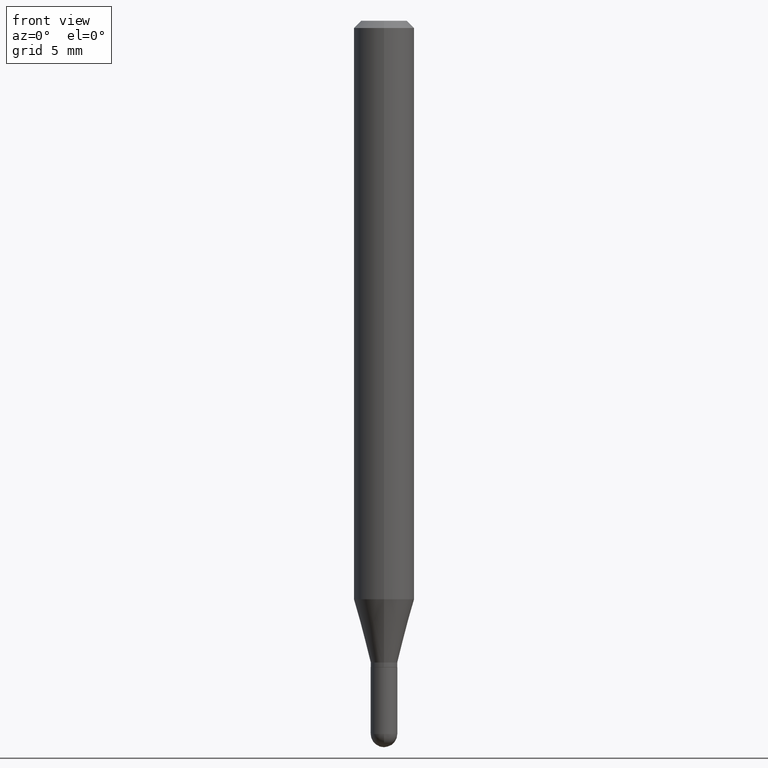
[diagram: clean part render]
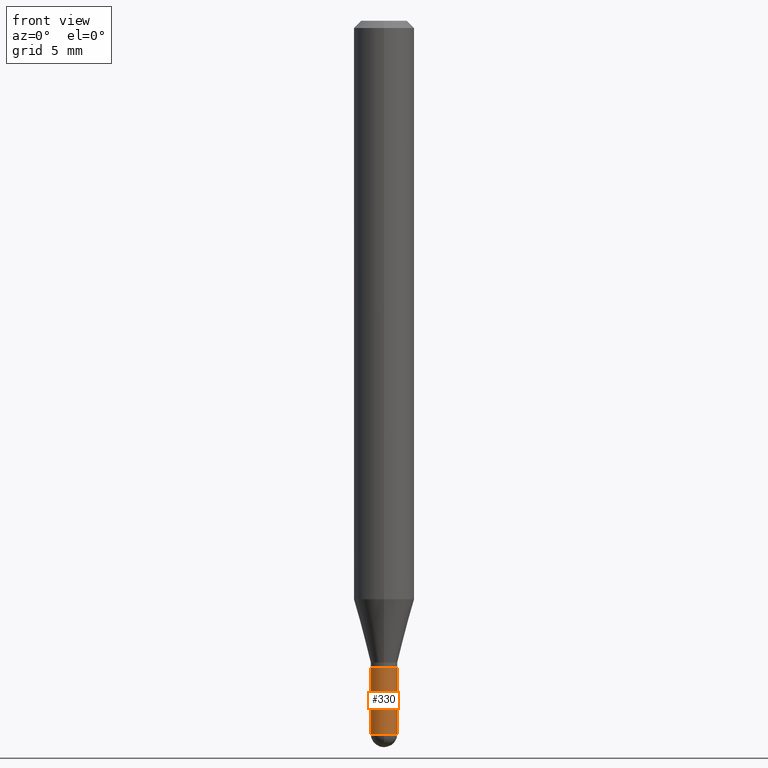
[diagram: same view with one face highlighted and labeled with its STEP entity id]
A machine part, front view. The second image highlights one B-rep face of the part: STEP entity #330.
In plain terms, the highlighted cylindrical surface (edge-blend (fillet) strip) has radius 0.6985 mm, axis along (-0, 0, 1).
Its self-contained STEP definition (entity closure, byte-faithful):
#4 = CIRCLE ( 'NONE', #433, 0.02750000000000000708 ) ;
#16 = VERTEX_POINT ( 'NONE', #313 ) ;
#37 = DIRECTION ( 'NONE',  ( 1.000000000000000000, -6.982962677686279332E-15, 0.000000000000000000 ) ) ;
#48 = AXIS2_PLACEMENT_3D ( 'NONE', #289, #436, #51 ) ;
#50 = ORIENTED_EDGE ( 'NONE', *, *, #254, .T. ) ;
#51 = DIRECTION ( 'NONE',  ( 1.000000000000000000, -6.982962677686265922E-15, 4.876176775795935232E-29 ) ) ;
#66 = CARTESIAN_POINT ( 'NONE',  ( -0.02750000000000000708, 1.953992523340276014E-16, -1.352707149820099356E-30 ) ) ;
#70 = ORIENTED_EDGE ( 'NONE', *, *, #151, .T. ) ;
#82 = CARTESIAN_POINT ( 'NONE',  ( 3.264700856257157760E-29, -4.661127587355599122E-15, -1.335000000000000187 ) ) ;
#98 = CARTESIAN_POINT ( 'NONE',  ( 0.02750000000000000014, -4.853159060991972403E-15, -1.335000000000000187 ) ) ;
#114 = EDGE_LOOP ( 'NONE', ( #446, #132, #50, #70, #373 ) ) ;
#132 = ORIENTED_EDGE ( 'NONE', *, *, #470, .T. ) ;
#137 = LINE ( 'NONE', #454, #507 ) ;
#148 = AXIS2_PLACEMENT_3D ( 'NONE', #423, #424, #274 ) ;
#151 = EDGE_CURVE ( 'NONE', #16, #301, #137, .T. ) ;
#167 = VERTEX_POINT ( 'NONE', #251 ) ;
#179 = DIRECTION ( 'NONE',  ( -2.445468806185136877E-29, 3.491481338843145188E-15, 1.000000000000000000 ) ) ;
#181 = VERTEX_POINT ( 'NONE', #314 ) ;
#206 = EDGE_CURVE ( 'NONE', #181, #301, #315, .T. ) ;
#207 = DIRECTION ( 'NONE',  ( -2.445468806185136597E-29, 3.491481338843145583E-15, 1.000000000000000000 ) ) ;
#226 = VERTEX_POINT ( 'NONE', #473 ) ;
#227 = DIRECTION ( 'NONE',  ( -2.445468806185136877E-29, 3.491481338843145188E-15, 1.000000000000000000 ) ) ;
#251 = CARTESIAN_POINT ( 'NONE',  ( -0.02750000000000000708, -4.705767677067038393E-15, -1.472500000000000142 ) ) ;
#254 = EDGE_CURVE ( 'NONE', #226, #16, #4, .T. ) ;
#265 = LINE ( 'NONE', #66, #292 ) ;
#274 = DIRECTION ( 'NONE',  ( 1.000000000000000000, -6.982962677686277755E-15, 0.000000000000000000 ) ) ;
#275 = AXIS2_PLACEMENT_3D ( 'NONE', #82, #390, #37 ) ;
#287 = CYLINDRICAL_SURFACE ( 'NONE', #48, 0.02750000000000000708 ) ;
#289 = CARTESIAN_POINT ( 'NONE',  ( 0.000000000000000000, 0.000000000000000000, 0.000000000000000000 ) ) ;
#292 = VECTOR ( 'NONE', #227, 39.37007874015748143 ) ;
#301 = VERTEX_POINT ( 'NONE', #98 ) ;
#313 = CARTESIAN_POINT ( 'NONE',  ( 0.02750000000000000708, -5.093198403037438216E-15, -1.472500000000000142 ) ) ;
#314 = CARTESIAN_POINT ( 'NONE',  ( -0.02750000000000000014, -4.705767677067038393E-15, -1.335000000000000187 ) ) ;
#315 = CIRCLE ( 'NONE', #275, 0.02750000000000000014 ) ;
#319 = DIRECTION ( 'NONE',  ( 1.000000000000000000, -6.982962677686277755E-15, 0.000000000000000000 ) ) ;
#330 = ADVANCED_FACE ( 'NONE', ( #483 ), #287, .T. ) ;
#373 = ORIENTED_EDGE ( 'NONE', *, *, #206, .F. ) ;
#390 = DIRECTION ( 'NONE',  ( -2.445468806185136597E-29, 3.491481338843145583E-15, 1.000000000000000000 ) ) ;
#396 = CARTESIAN_POINT ( 'NONE',  ( 3.600952817107613706E-29, -5.141206271446532325E-15, -1.472500000000000142 ) ) ;
#399 = EDGE_CURVE ( 'NONE', #167, #181, #265, .T. ) ;
#419 = CIRCLE ( 'NONE', #148, 0.02750000000000000708 ) ;
#423 = CARTESIAN_POINT ( 'NONE',  ( 3.600952817107613706E-29, -5.141206271446532325E-15, -1.472500000000000142 ) ) ;
#424 = DIRECTION ( 'NONE',  ( -2.445468806185136597E-29, 3.491481338843145583E-15, 1.000000000000000000 ) ) ;
#433 = AXIS2_PLACEMENT_3D ( 'NONE', #396, #207, #319 ) ;
#436 = DIRECTION ( 'NONE',  ( -2.445468806185136597E-29, 3.491481338843145583E-15, 1.000000000000000000 ) ) ;
#446 = ORIENTED_EDGE ( 'NONE', *, *, #399, .F. ) ;
#454 = CARTESIAN_POINT ( 'NONE',  ( 0.02750000000000000708, -1.920314736363723691E-16, 1.340948613343882588E-30 ) ) ;
#470 = EDGE_CURVE ( 'NONE', #167, #226, #419, .T. ) ;
#473 = CARTESIAN_POINT ( 'NONE',  ( -1.953992523339914371E-16, -0.02750000000000512798, -1.472500000000000142 ) ) ;
#483 = FACE_OUTER_BOUND ( 'NONE', #114, .T. ) ;
#507 = VECTOR ( 'NONE', #179, 39.37007874015748143 ) ;